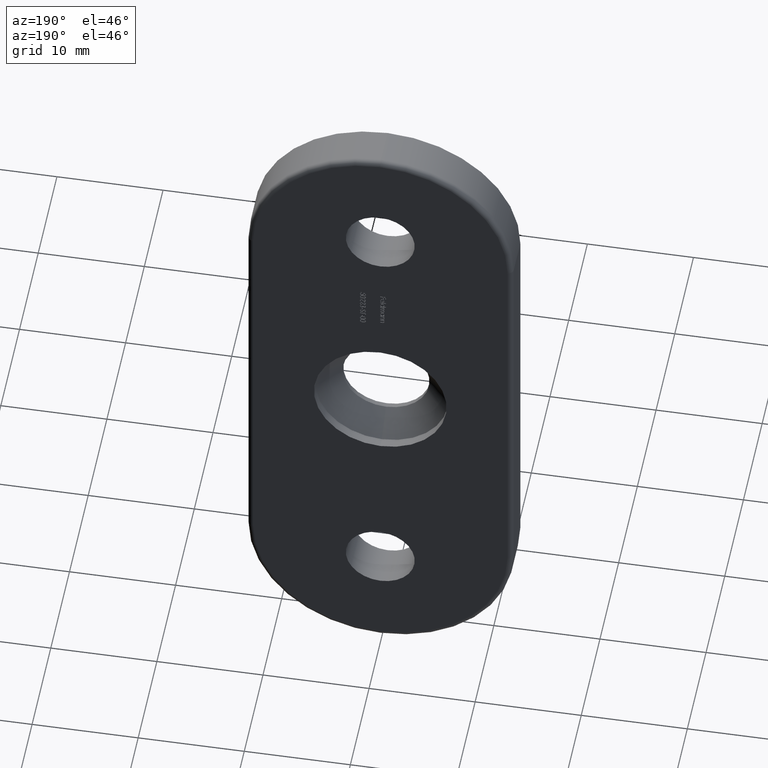
[diagram: clean part render]
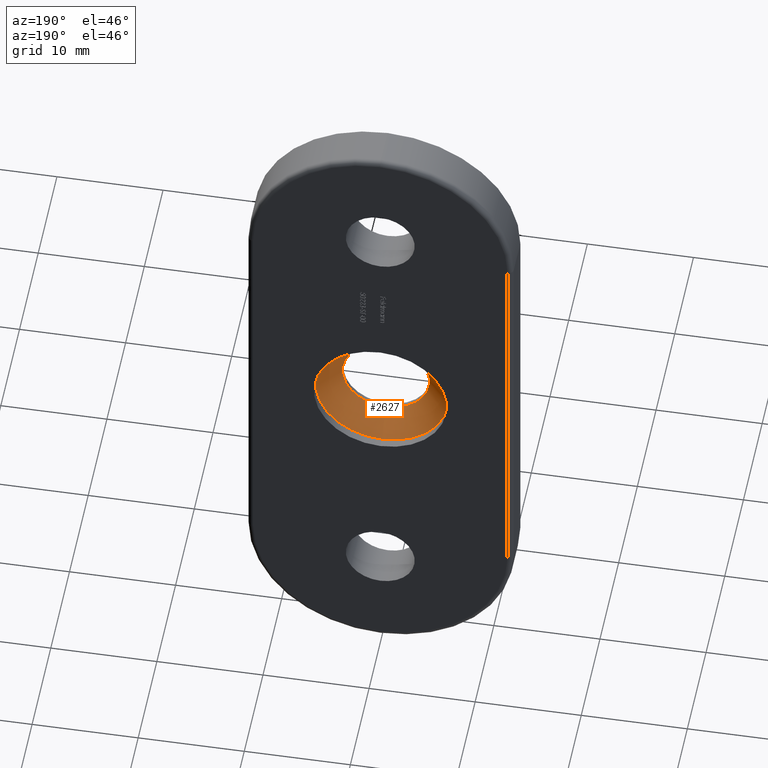
[diagram: same view with one face highlighted and labeled with its STEP entity id]
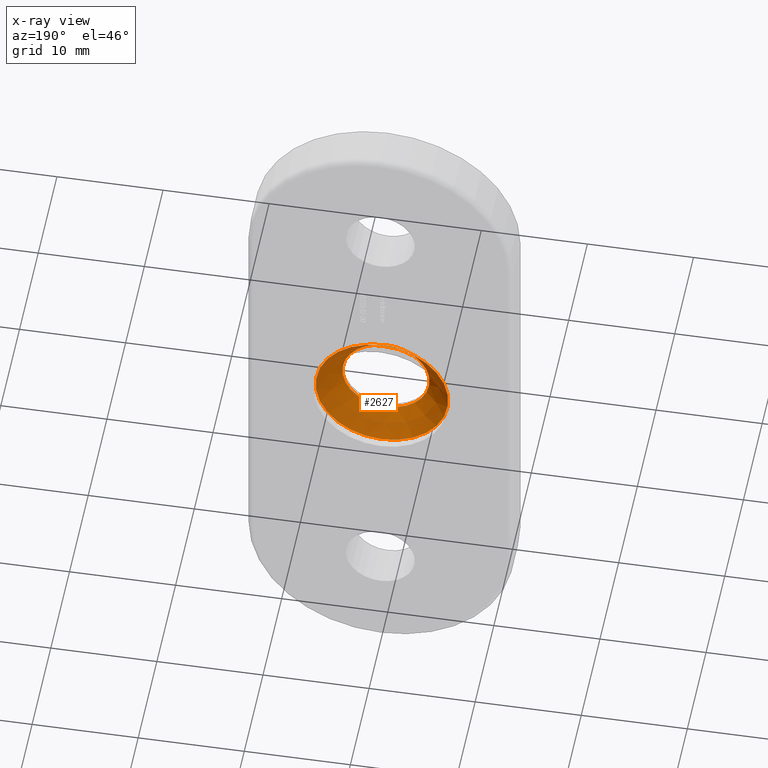
[diagram: x-ray of the same camera — body ghosted, the highlighted face saturated]
A machine part, auxiliary view. The second image highlights one B-rep face of the part: STEP entity #2627.
The next image is the same camera in x-ray: the body ghosted, the highlighted face saturated — about 0% of this face is hidden behind the body in this view.
In plain terms, the highlighted conical surface has half-angle 45 deg.
Its self-contained STEP definition (entity closure, byte-faithful):
#2627 = ADVANCED_FACE ( 'NONE', ( #9039, #5437 ), #7074, .F. ) ;
#4585 = ORIENTED_EDGE ( 'NONE', *, *, #7890, .T. ) ;
#4816 = DIRECTION ( 'NONE',  ( -0.000000000000000000, -1.000000000000000000, -0.000000000000000000 ) ) ;
#5437 = FACE_BOUND ( 'NONE', #7122, .T. ) ;
#5750 = VERTEX_POINT ( 'NONE', #13366 ) ;
#7074 = CONICAL_SURFACE ( 'NONE', #14986, 4.099999999999999645, 0.7853981633974427279 ) ;
#7122 = EDGE_LOOP ( 'NONE', ( #4585 ) ) ;
#7532 = DIRECTION ( 'NONE',  ( 0.000000000000000000, 0.000000000000000000, -1.000000000000000000 ) ) ;
#7577 = CIRCLE ( 'NONE', #14496, 4.099999999999999645 ) ;
#7784 = ORIENTED_EDGE ( 'NONE', *, *, #12543, .F. ) ;
#7890 = EDGE_CURVE ( 'NONE', #5750, #5750, #7577, .T. ) ;
#7941 = VERTEX_POINT ( 'NONE', #14575 ) ;
#8626 = CARTESIAN_POINT ( 'NONE',  ( 0.000000000000000000, 3.100000000000001865, 0.000000000000000000 ) ) ;
#9039 = FACE_OUTER_BOUND ( 'NONE', #12142, .T. ) ;
#9377 = CARTESIAN_POINT ( 'NONE',  ( 0.000000000000000000, 0.9499999999999773070, 0.000000000000000000 ) ) ;
#9741 = DIRECTION ( 'NONE',  ( 0.000000000000000000, 0.000000000000000000, 1.000000000000000000 ) ) ;
#9801 = DIRECTION ( 'NONE',  ( -0.000000000000000000, -1.000000000000000000, -0.000000000000000000 ) ) ;
#10532 = CIRCLE ( 'NONE', #10911, 6.250000000000000000 ) ;
#10911 = AXIS2_PLACEMENT_3D ( 'NONE', #8626, #9801, #7532 ) ;
#12142 = EDGE_LOOP ( 'NONE', ( #7784 ) ) ;
#12543 = EDGE_CURVE ( 'NONE', #7941, #7941, #10532, .T. ) ;
#13366 = CARTESIAN_POINT ( 'NONE',  ( 0.000000000000000000, 0.9499999999999773070, -4.099999999999999645 ) ) ;
#14109 = DIRECTION ( 'NONE',  ( 0.000000000000000000, 0.000000000000000000, -1.000000000000000000 ) ) ;
#14379 = DIRECTION ( 'NONE',  ( 0.000000000000000000, 1.000000000000000000, 0.000000000000000000 ) ) ;
#14496 = AXIS2_PLACEMENT_3D ( 'NONE', #9377, #4816, #14109 ) ;
#14575 = CARTESIAN_POINT ( 'NONE',  ( 0.000000000000000000, 3.100000000000001865, -6.250000000000000000 ) ) ;
#14580 = CARTESIAN_POINT ( 'NONE',  ( 0.000000000000000000, 0.9499999999999773070, 0.000000000000000000 ) ) ;
#14986 = AXIS2_PLACEMENT_3D ( 'NONE', #14580, #14379, #9741 ) ;